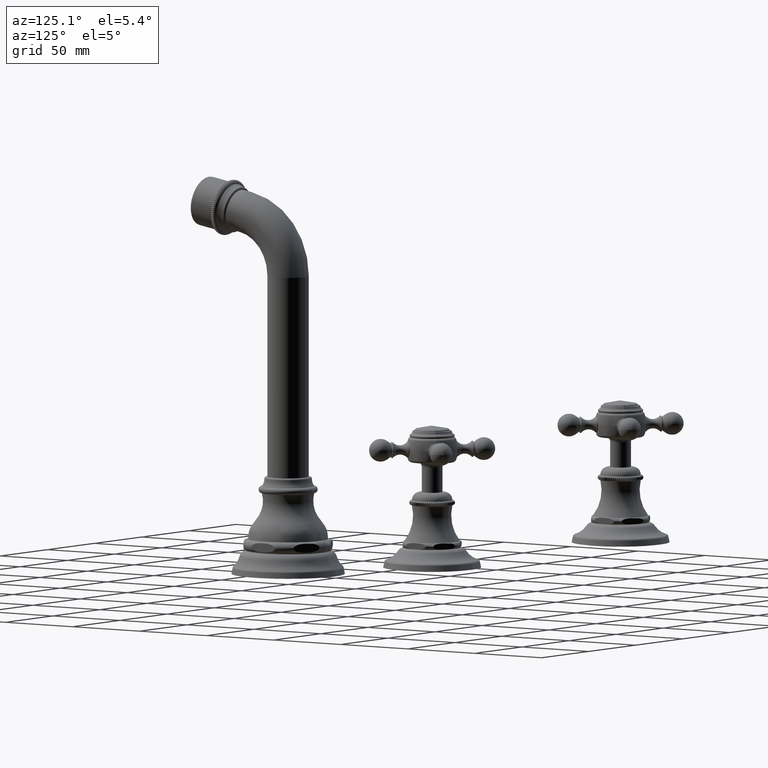
[diagram: clean part render]
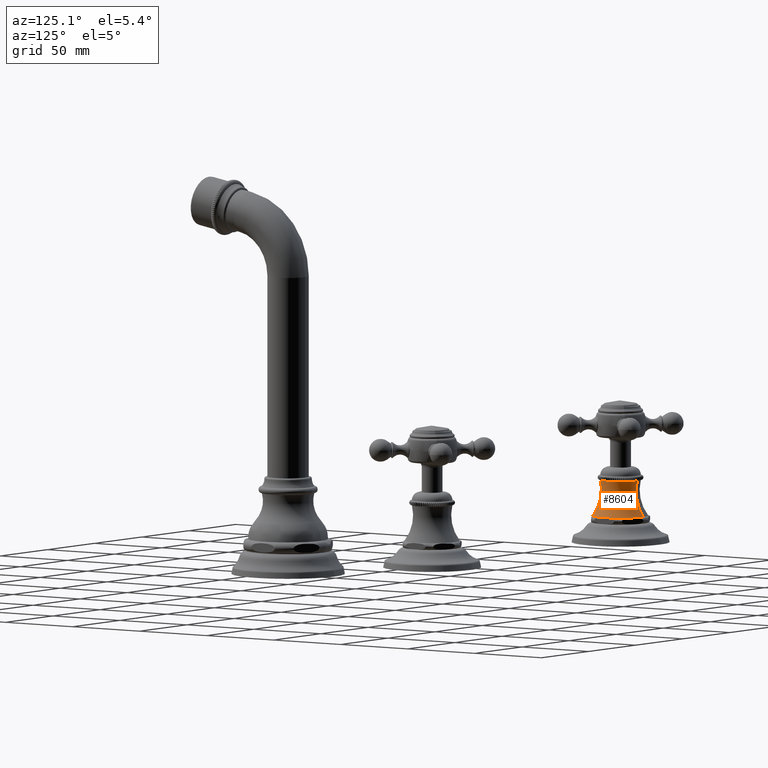
[diagram: same view with one face highlighted and labeled with its STEP entity id]
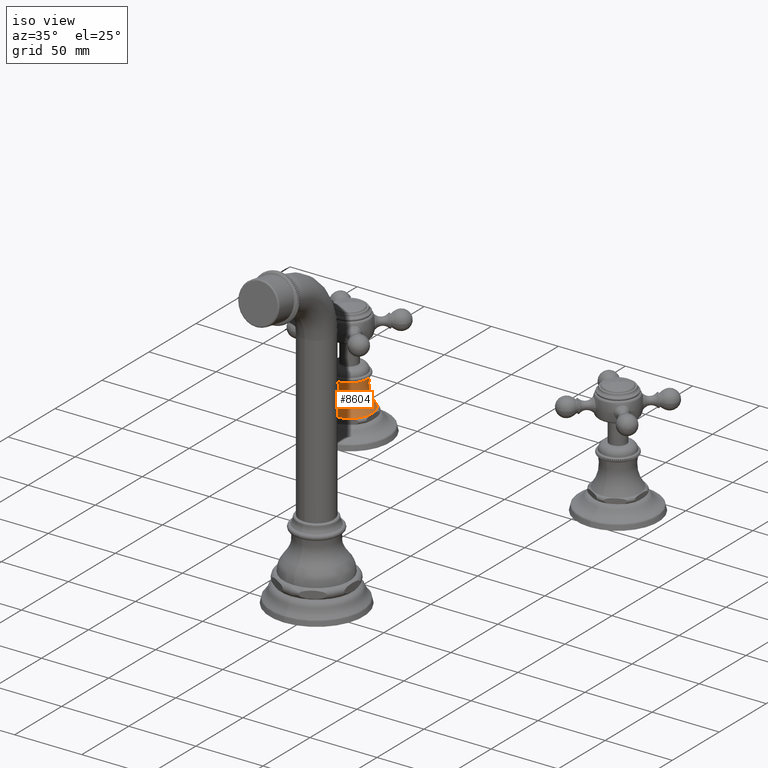
[diagram: same view with one face highlighted and labeled with its STEP entity id]
A machine part, auxiliary view. The second image highlights one B-rep face of the part: STEP entity #8604.
A second angle (iso view) of the same face is appended — the face is thin or edge-on in the first view.
In plain terms, the highlighted toroidal blend (fillet) surface has major radius 37.7701 mm and minor (blend) radius 26.0858 mm.
Its self-contained STEP definition (entity closure, byte-faithful):
#1435=CARTESIAN_POINT('',(-3.935E0,7.E0,1.499E0));
#1436=DIRECTION('',(0.E0,0.E0,-1.E0));
#1437=DIRECTION('',(0.E0,1.E0,0.E0));
#1438=AXIS2_PLACEMENT_3D('',#1435,#1436,#1437);
#4138=CARTESIAN_POINT('',(-3.935E0,8.487011938409E0,1.252634022903E0));
#4139=DIRECTION('',(-1.E0,0.E0,0.E0));
#4140=DIRECTION('',(0.E0,-7.989405437278E-1,-6.014100162018E-1));
#4141=AXIS2_PLACEMENT_3D('',#4138,#4139,#4140);
#4146=CARTESIAN_POINT('',(-3.935E0,5.512988061591E0,1.252634022903E0));
#4147=DIRECTION('',(1.E0,0.E0,0.E0));
#4148=DIRECTION('',(0.E0,7.989405437278E-1,-6.014100162018E-1));
#4149=AXIS2_PLACEMENT_3D('',#4146,#4147,#4148);
#4162=CARTESIAN_POINT('',(-3.935E0,7.E0,6.349859362638E-1));
#4163=DIRECTION('',(0.E0,0.E0,-1.E0));
#4164=DIRECTION('',(0.E0,1.E0,0.E0));
#4165=AXIS2_PLACEMENT_3D('',#4162,#4163,#4164);
#5919=CARTESIAN_POINT('',(-3.935E0,7.6665E0,6.349859362638E-1));
#5921=VERTEX_POINT('',#5919);
#5922=CARTESIAN_POINT('',(-3.935E0,7.49E0,1.499E0));
#5923=VERTEX_POINT('',#5922);
#5929=CARTESIAN_POINT('',(-3.935E0,6.3335E0,6.349859362638E-1));
#5931=VERTEX_POINT('',#5929);
#5932=CARTESIAN_POINT('',(-3.935E0,6.51E0,1.499E0));
#5933=VERTEX_POINT('',#5932);
#8592=CARTESIAN_POINT('',(-3.935E0,7.E0,1.252634022903E0));
#8593=DIRECTION('',(0.E0,0.E0,-1.E0));
#8594=DIRECTION('',(0.E0,-1.E0,0.E0));
#8595=AXIS2_PLACEMENT_3D('',#8592,#8593,#8594);
#8596=TOROIDAL_SURFACE('',#8595,1.487011938408E0,1.027E0);
#8597=ORIENTED_EDGE('',*,*,#8575,.F.);
#8599=ORIENTED_EDGE('',*,*,#8598,.T.);
#8600=ORIENTED_EDGE('',*,*,#8578,.T.);
#8601=ORIENTED_EDGE('',*,*,#8045,.F.);
#8602=EDGE_LOOP('',(#8597,#8599,#8600,#8601));
#8603=FACE_OUTER_BOUND('',#8602,.F.);
#1439=CIRCLE('',#1438,4.9E-1);
#4142=CIRCLE('',#4141,1.027E0);
#4150=CIRCLE('',#4149,1.027E0);
#4166=CIRCLE('',#4165,6.665E-1);
#8045=EDGE_CURVE('',#5923,#5933,#1439,.T.);
#8575=EDGE_CURVE('',#5921,#5923,#4142,.T.);
#8578=EDGE_CURVE('',#5931,#5933,#4150,.T.);
#8598=EDGE_CURVE('',#5921,#5931,#4166,.T.);
#8604=ADVANCED_FACE('',(#8603),#8596,.F.);